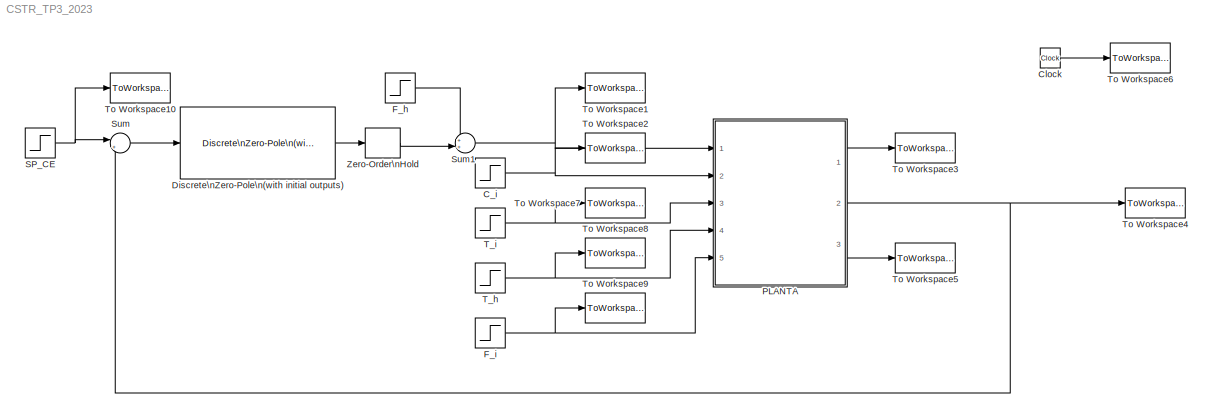
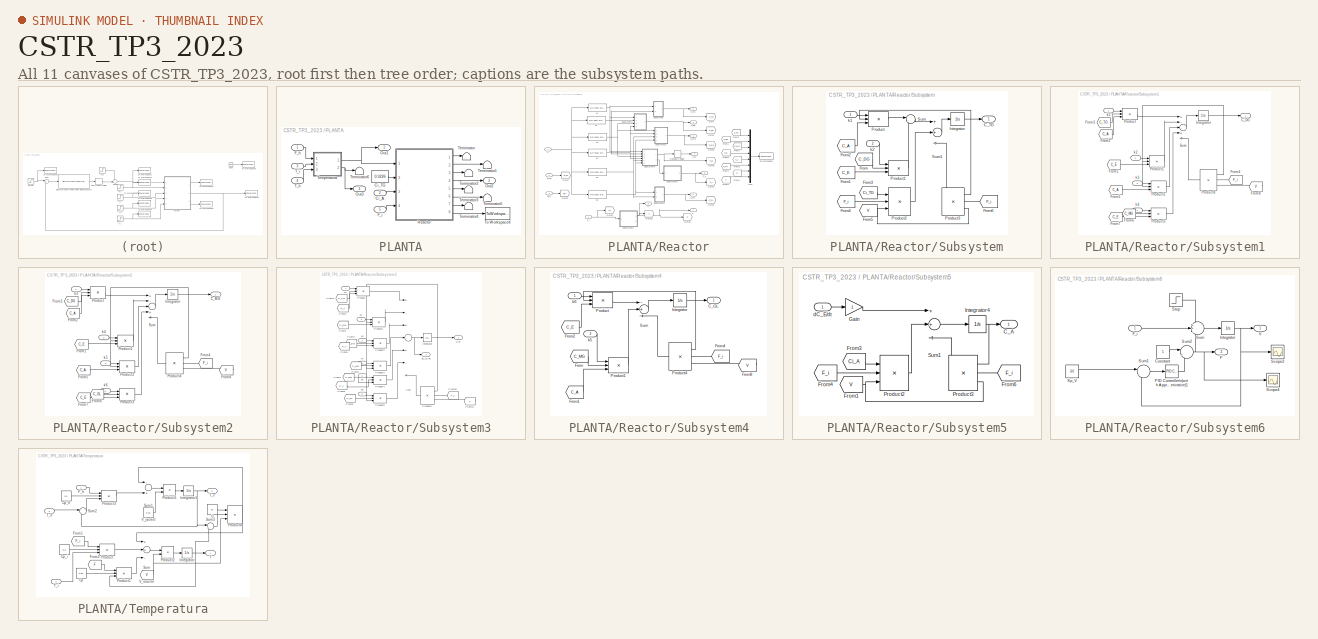
[diagram: thumbnail index - all 11 canvases of the model, root first then tree order]
MODEL CSTR_TP3_2023
KIND model
BLOCK [Step] C_i
  After = 1.1367
  Before = 1.1367
  SID = 1
  SampleTime = 1
  Time = 50
BLOCK [Clock] Clock
  SID = 2
BLOCK [Reference] Discrete\nZero-Pole\n(with initial outputs)  REF=simulink_extras/Additional\nDiscrete/Discrete\nZero-Pole\n(with initial outputs)
  K = [k]
  P = [pole1; pole2]
  Ports = [1, 1]
  SID = 3
  SourceBlock = simulink_extras/Additional\nDiscrete/Discrete\nZero-Pole\n(with initial outputs)
  SourceType = Discrete Zero-Pole with Initial Outputs
  TS = Ts
  U0 = 0
  Y0 = 0
  Z = [zero1; zero2]
BLOCK [Step] F_h
  After = 0.8946
  Before = 0.8946
  SID = 4
  SampleTime = 1
  Time = 50
BLOCK [Step] F_i
  Before = 1
  SID = 5
  SampleTime = 1
  Time = 50
BLOCK [SubSystem] PLANTA
  Ports = [5, 3]
  RequestExecContextInheritance = off
  SID = 6
BLOCK [Inport] PLANTA/Ci_A
  IconDisplay = Port number
  Port = 2
  SID = 8
BLOCK [Constant] PLANTA/Ci_TG
  SID = 12
  Value = 0.3226
BLOCK [Inport] PLANTA/F_h
  IconDisplay = Port number
  SID = 7
BLOCK [Inport] PLANTA/F_i
  IconDisplay = Port number
  Port = 5
  SID = 11
BLOCK [Outport] PLANTA/Out1
  IconDisplay = Port number
  SID = 217
BLOCK [Outport] PLANTA/Out2
  IconDisplay = Port number
  Port = 2
  SID = 218
BLOCK [Outport] PLANTA/Out3
  IconDisplay = Port number
  Port = 3
  SID = 219
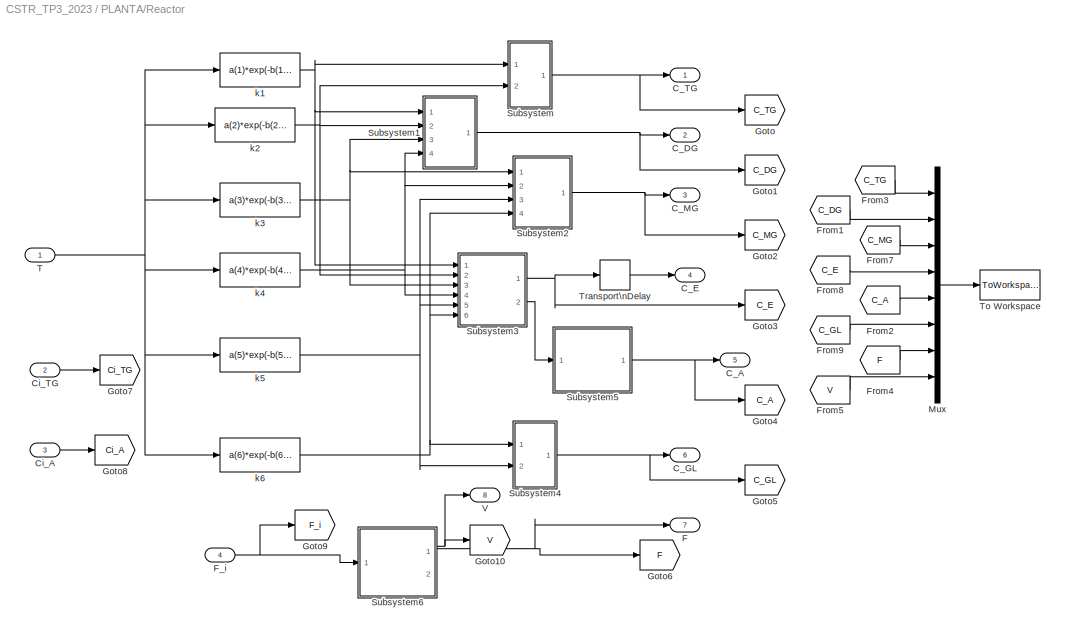
BLOCK [SubSystem] PLANTA/Reactor
  Ports = [4, 8]
  RequestExecContextInheritance = off
  SID = 13
BLOCK [Outport] PLANTA/Reactor/C_A
  IconDisplay = Port number
  Port = 5
  SID = 179
BLOCK [Outport] PLANTA/Reactor/C_DG
  IconDisplay = Port number
  Port = 2
  SID = 176
BLOCK [Outport] PLANTA/Reactor/C_E
  IconDisplay = Port number
  Port = 4
  SID = 178
BLOCK [Outport] PLANTA/Reactor/C_GL
  IconDisplay = Port number
  Port = 6
  SID = 180
BLOCK [Outport] PLANTA/Reactor/C_MG
  IconDisplay = Port number
  Port = 3
  SID = 177
BLOCK [Outport] PLANTA/Reactor/C_TG
  IconDisplay = Port number
  SID = 175
BLOCK [Inport] PLANTA/Reactor/Ci_A
  IconDisplay = Port number
  Port = 3
  SID = 16
BLOCK [Inport] PLANTA/Reactor/Ci_TG
  IconDisplay = Port number
  Port = 2
  SID = 15
BLOCK [Outport] PLANTA/Reactor/F
  IconDisplay = Port number
  Port = 7
  SID = 181
BLOCK [Inport] PLANTA/Reactor/F_i
  IconDisplay = Port number
  Port = 4
  SID = 17
BLOCK [From] PLANTA/Reactor/From1
  CloseFcn = tagdialog Close
  GotoTag = C_DG
  SID = 18
  TagVisibility = global
BLOCK [From] PLANTA/Reactor/From2
  CloseFcn = tagdialog Close
  GotoTag = C_A
  SID = 19
  TagVisibility = global
BLOCK [From] PLANTA/Reactor/From3
  CloseFcn = tagdialog Close
  GotoTag = C_TG
  SID = 20
  TagVisibility = global
BLOCK [From] PLANTA/Reactor/From4
  CloseFcn = tagdialog Close
  GotoTag = F
  SID = 21
  TagVisibility = global
BLOCK [From] PLANTA/Reactor/From5
  CloseFcn = tagdialog Close
  GotoTag = V
  SID = 22
  TagVisibility = global
BLOCK [From] PLANTA/Reactor/From7
  CloseFcn = tagdialog Close
  GotoTag = C_MG
  SID = 23
  TagVisibility = global
BLOCK [From] PLANTA/Reactor/From8
  CloseFcn = tagdialog Close
  GotoTag = C_E
  SID = 24
  TagVisibility = global
BLOCK [From] PLANTA/Reactor/From9
  CloseFcn = tagdialog Close
  GotoTag = C_GL
  SID = 25
  TagVisibility = global
BLOCK [Goto] PLANTA/Reactor/Goto
  GotoTag = C_TG
  SID = 26
  TagVisibility = global
BLOCK [Goto] PLANTA/Reactor/Goto1
  GotoTag = C_DG
  SID = 27
  TagVisibility = global
BLOCK [Goto] PLANTA/Reactor/Goto10
  GotoTag = V
  SID = 28
  TagVisibility = global
BLOCK [Goto] PLANTA/Reactor/Goto2
  GotoTag = C_MG
  SID = 29
  TagVisibility = global
BLOCK [Goto] PLANTA/Reactor/Goto3
  GotoTag = C_E
  SID = 30
  TagVisibility = global
BLOCK [Goto] PLANTA/Reactor/Goto4
  GotoTag = C_A
  SID = 31
  TagVisibility = global
BLOCK [Goto] PLANTA/Reactor/Goto5
  GotoTag = C_GL
  SID = 32
  TagVisibility = global
BLOCK [Goto] PLANTA/Reactor/Goto6
  GotoTag = F
  SID = 33
  TagVisibility = global
BLOCK [Goto] PLANTA/Reactor/Goto7
  GotoTag = Ci_TG
  SID = 34
  TagVisibility = global
BLOCK [Goto] PLANTA/Reactor/Goto8
  GotoTag = Ci_A
  SID = 35
  TagVisibility = global
BLOCK [Goto] PLANTA/Reactor/Goto9
  GotoTag = F_i
  SID = 36
  TagVisibility = global
BLOCK [Mux] PLANTA/Reactor/Mux
  DisplayOption = bar
  Inputs = 8
  Ports = [8, 1]
  SID = 37
BLOCK [SubSystem] PLANTA/Reactor/Subsystem
  Ports = [2, 1]
  RequestExecContextInheritance = off
  SID = 38
BLOCK [Outport] PLANTA/Reactor/Subsystem/C_TG
  IconDisplay = Port number
  SID = 55
BLOCK [From] PLANTA/Reactor/Subsystem/From
  CloseFcn = tagdialog Close
  GotoTag = C_DG
  SID = 41
  TagVisibility = global
BLOCK [From] PLANTA/Reactor/Subsystem/From1
  CloseFcn = tagdialog Close
  GotoTag = C_E
  SID = 42
  TagVisibility = global
BLOCK [From] PLANTA/Reactor/Subsystem/From2
  CloseFcn = tagdialog Close
  GotoTag = C_A
  SID = 43
  TagVisibility = global
BLOCK [From] PLANTA/Reactor/Subsystem/From3
  CloseFcn = tagdialog Close
  GotoTag = Ci_TG
  SID = 44
  TagVisibility = global
BLOCK [From] PLANTA/Reactor/Subsystem/From4
  CloseFcn = tagdialog Close
  GotoTag = F_i
  SID = 45
  TagVisibility = global
BLOCK [From] PLANTA/Reactor/Subsystem/From5
  CloseFcn = tagdialog Close
  GotoTag = V
  SID = 46
  TagVisibility = global
BLOCK [From] PLANTA/Reactor/Subsystem/From6
  CloseFcn = tagdialog Close
  GotoTag = F_i
  SID = 47
  TagVisibility = global
BLOCK [Integrator] PLANTA/Reactor/Subsystem/Integrator
  InitialCondition = C0(1)
  Ports = [1, 1]
  SID = 48
BLOCK [Product] PLANTA/Reactor/Subsystem/Product
  Inputs = 3
  Ports = [3, 1]
  SID = 49
BLOCK [Product] PLANTA/Reactor/Subsystem/Product1
  Inputs = 3
  Ports = [3, 1]
  SID = 50
BLOCK [Product] PLANTA/Reactor/Subsystem/Product2
  Inputs = **/
  Ports = [3, 1]
  SID = 51
BLOCK [Product] PLANTA/Reactor/Subsystem/Product3
  Inputs = **/
  Ports = [3, 1]
  SID = 52
BLOCK [Sum] PLANTA/Reactor/Subsystem/Sum
  IconShape = round
  Inputs = |-+
  Ports = [2, 1]
  SID = 53
BLOCK [Sum] PLANTA/Reactor/Subsystem/Sum1
  Inputs = ++-
  Ports = [3, 1]
  SID = 54
BLOCK [Inport] PLANTA/Reactor/Subsystem/k1
  IconDisplay = Port number
  SID = 39
BLOCK [Inport] PLANTA/Reactor/Subsystem/k2
  IconDisplay = Port number
  Port = 2
  SID = 40
BLOCK [SubSystem] PLANTA/Reactor/Subsystem1
  Ports = [4, 1]
  RequestExecContextInheritance = off
  SID = 56
BLOCK [Outport] PLANTA/Reactor/Subsystem1/C_DG
  IconDisplay = Port number
  SID = 76
BLOCK [From] PLANTA/Reactor/Subsystem1/From1
  CloseFcn = tagdialog Close
  GotoTag = C_E
  SID = 61
  TagVisibility = global
BLOCK [From] PLANTA/Reactor/Subsystem1/From2
  CloseFcn = tagdialog Close
  GotoTag = C_A
  SID = 62
  TagVisibility = global
BLOCK [From] PLANTA/Reactor/Subsystem1/From3
  CloseFcn = tagdialog Close
  GotoTag = C_TG
  SID = 63
  TagVisibility = global
BLOCK [From] PLANTA/Reactor/Subsystem1/From4
  CloseFcn = tagdialog Close
  GotoTag = F_i
  SID = 64
  TagVisibility = global
BLOCK [From] PLANTA/Reactor/Subsystem1/From5
  CloseFcn = tagdialog Close
  GotoTag = C_A
  SID = 65
  TagVisibility = global
BLOCK [From] PLANTA/Reactor/Subsystem1/From6
  CloseFcn = tagdialog Close
  GotoTag = C_MG
  SID = 66
  TagVisibility = global
BLOCK [From] PLANTA/Reactor/Subsystem1/From7
  CloseFcn = tagdialog Close
  GotoTag = C_E
  SID = 67
  TagVisibility = global
BLOCK [From] PLANTA/Reactor/Subsystem1/From8
  CloseFcn = tagdialog Close
  GotoTag = V
  SID = 68
  TagVisibility = global
BLOCK [Integrator] PLANTA/Reactor/Subsystem1/Integrator
  InitialCondition = C0(2)
  Ports = [1, 1]
  SID = 69
BLOCK [Product] PLANTA/Reactor/Subsystem1/Product
  Inputs = 3
  Ports = [3, 1]
  SID = 70
BLOCK [Product] PLANTA/Reactor/Subsystem1/Product1
  Inputs = 3
  Ports = [3, 1]
  SID = 71
BLOCK [Product] PLANTA/Reactor/Subsystem1/Product2
  Inputs = 3
  Ports = [3, 1]
  SID = 72
BLOCK [Product] PLANTA/Reactor/Subsystem1/Product3
  Inputs = 3
  Ports = [3, 1]
  SID = 73
BLOCK [Product] PLANTA/Reactor/Subsystem1/Product4
  Inputs = **/
  Ports = [3, 1]
  SID = 74
BLOCK [Sum] PLANTA/Reactor/Subsystem1/Sum
  Inputs = +--+-
  Ports = [5, 1]
  SID = 75
BLOCK [Inport] PLANTA/Reactor/Subsystem1/k1
  IconDisplay = Port number
  SID = 57
BLOCK [Inport] PLANTA/Reactor/Subsystem1/k2
  IconDisplay = Port number
  Port = 2
  SID = 58
BLOCK [Inport] PLANTA/Reactor/Subsystem1/k3
  IconDisplay = Port number
  Port = 3
  SID = 59
BLOCK [Inport] PLANTA/Reactor/Subsystem1/k4
  IconDisplay = Port number
  Port = 4
  SID = 60
BLOCK [SubSystem] PLANTA/Reactor/Subsystem2
  Ports = [4, 1]
  RequestExecContextInheritance = off
  SID = 77
BLOCK [Outport] PLANTA/Reactor/Subsystem2/C_MG
  IconDisplay = Port number
  SID = 97
BLOCK [From] PLANTA/Reactor/Subsystem2/From1
  CloseFcn = tagdialog Close
  GotoTag = C_E
  SID = 82
  TagVisibility = global
BLOCK [From] PLANTA/Reactor/Subsystem2/From2
  CloseFcn = tagdialog Close
  GotoTag = C_A
  SID = 83
  TagVisibility = global
BLOCK [From] PLANTA/Reactor/Subsystem2/From3
  CloseFcn = tagdialog Close
  GotoTag = C_DG
  SID = 84
  TagVisibility = global
BLOCK [From] PLANTA/Reactor/Subsystem2/From4
  CloseFcn = tagdialog Close
  GotoTag = F_i
  SID = 85
  TagVisibility = global
BLOCK [From] PLANTA/Reactor/Subsystem2/From5
  CloseFcn = tagdialog Close
  GotoTag = C_A
  SID = 86
  TagVisibility = global
BLOCK [From] PLANTA/Reactor/Subsystem2/From6
  CloseFcn = tagdialog Close
  GotoTag = C_GL
  SID = 87
  TagVisibility = global
BLOCK [From] PLANTA/Reactor/Subsystem2/From7
  CloseFcn = tagdialog Close
  GotoTag = C_E
  SID = 88
  TagVisibility = global
BLOCK [From] PLANTA/Reactor/Subsystem2/From8
  CloseFcn = tagdialog Close
  GotoTag = V
  SID = 89
  TagVisibility = global
BLOCK [Integrator] PLANTA/Reactor/Subsystem2/Integrator
  InitialCondition = C0(3)
  Ports = [1, 1]
  SID = 90
BLOCK [Product] PLANTA/Reactor/Subsystem2/Product
  Inputs = 3
  Ports = [3, 1]
  SID = 91
BLOCK [Product] PLANTA/Reactor/Subsystem2/Product1
  Inputs = 3
  Ports = [3, 1]
  SID = 92
BLOCK [Product] PLANTA/Reactor/Subsystem2/Product2
  Inputs = 3
  Ports = [3, 1]
  SID = 93
BLOCK [Product] PLANTA/Reactor/Subsystem2/Product3
  Inputs = 3
  Ports = [3, 1]
  SID = 94
BLOCK [Product] PLANTA/Reactor/Subsystem2/Product4
  Inputs = **/
  Ports = [3, 1]
  SID = 95
BLOCK [Sum] PLANTA/Reactor/Subsystem2/Sum
  Inputs = +--+-
  Ports = [5, 1]
  SID = 96
BLOCK [Inport] PLANTA/Reactor/Subsystem2/k3
  IconDisplay = Port number
  SID = 78
BLOCK [Inport] PLANTA/Reactor/Subsystem2/k4
  IconDisplay = Port number
  Port = 2
  SID = 79
BLOCK [Inport] PLANTA/Reactor/Subsystem2/k5
  IconDisplay = Port number
  Port = 3
  SID = 80
BLOCK [Inport] PLANTA/Reactor/Subsystem2/k6
  IconDisplay = Port number
  Port = 4
  SID = 81
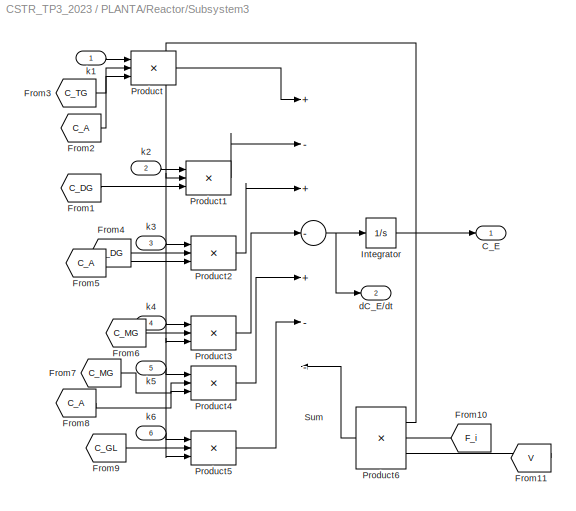
BLOCK [SubSystem] PLANTA/Reactor/Subsystem3
  Ports = [6, 2]
  RequestExecContextInheritance = off
  SID = 98
BLOCK [Outport] PLANTA/Reactor/Subsystem3/C_E
  IconDisplay = Port number
  SID = 125
BLOCK [From] PLANTA/Reactor/Subsystem3/From1
  CloseFcn = tagdialog Close
  GotoTag = C_DG
  SID = 105
  TagVisibility = global
BLOCK [From] PLANTA/Reactor/Subsystem3/From10
  CloseFcn = tagdialog Close
  GotoTag = F_i
  SID = 106
  TagVisibility = global
BLOCK [From] PLANTA/Reactor/Subsystem3/From11
  CloseFcn = tagdialog Close
  GotoTag = V
  SID = 107
  TagVisibility = global
BLOCK [From] PLANTA/Reactor/Subsystem3/From2
  CloseFcn = tagdialog Close
  GotoTag = C_A
  SID = 108
  TagVisibility = global
BLOCK [From] PLANTA/Reactor/Subsystem3/From3
  CloseFcn = tagdialog Close
  GotoTag = C_TG
  SID = 109
  TagVisibility = global
BLOCK [From] PLANTA/Reactor/Subsystem3/From4
  CloseFcn = tagdialog Close
  GotoTag = C_DG
  SID = 110
  TagVisibility = global
BLOCK [From] PLANTA/Reactor/Subsystem3/From5
  CloseFcn = tagdialog Close
  GotoTag = C_A
  SID = 111
  TagVisibility = global
BLOCK [From] PLANTA/Reactor/Subsystem3/From6
  CloseFcn = tagdialog Close
  GotoTag = C_MG
  SID = 112
  TagVisibility = global
BLOCK [From] PLANTA/Reactor/Subsystem3/From7
  CloseFcn = tagdialog Close
  GotoTag = C_MG
  SID = 113
  TagVisibility = global
BLOCK [From] PLANTA/Reactor/Subsystem3/From8
  CloseFcn = tagdialog Close
  GotoTag = C_A
  SID = 114
  TagVisibility = global
BLOCK [From] PLANTA/Reactor/Subsystem3/From9
  CloseFcn = tagdialog Close
  GotoTag = C_GL
  SID = 115
  TagVisibility = global
BLOCK [Integrator] PLANTA/Reactor/Subsystem3/Integrator
  InitialCondition = C0(4)
  Ports = [1, 1]
  SID = 116
BLOCK [Product] PLANTA/Reactor/Subsystem3/Product
  Inputs = 3
  Ports = [3, 1]
  SID = 117
BLOCK [Product] PLANTA/Reactor/Subsystem3/Product1
  Inputs = 3
  Ports = [3, 1]
  SID = 118
BLOCK [Product] PLANTA/Reactor/Subsystem3/Product2
  Inputs = 3
  Ports = [3, 1]
  SID = 119
BLOCK [Product] PLANTA/Reactor/Subsystem3/Product3
  Inputs = 3
  Ports = [3, 1]
  SID = 120
BLOCK [Product] PLANTA/Reactor/Subsystem3/Product4
  Inputs = 3
  Ports = [3, 1]
  SID = 121
BLOCK [Product] PLANTA/Reactor/Subsystem3/Product5
  Inputs = 3
  Ports = [3, 1]
  SID = 122
BLOCK [Product] PLANTA/Reactor/Subsystem3/Product6
  Inputs = **/
  Ports = [3, 1]
  SID = 123
BLOCK [Sum] PLANTA/Reactor/Subsystem3/Sum
  Inputs = +-+-+--
  Ports = [7, 1]
  SID = 124
BLOCK [Outport] PLANTA/Reactor/Subsystem3/dC_E//dt
  IconDisplay = Port number
  Port = 2
  SID = 126
BLOCK [Inport] PLANTA/Reactor/Subsystem3/k1
  IconDisplay = Port number
  SID = 99
BLOCK [Inport] PLANTA/Reactor/Subsystem3/k2
  IconDisplay = Port number
  Port = 2
  SID = 100
BLOCK [Inport] PLANTA/Reactor/Subsystem3/k3
  IconDisplay = Port number
  Port = 3
  SID = 101
BLOCK [Inport] PLANTA/Reactor/Subsystem3/k4
  IconDisplay = Port number
  Port = 4
  SID = 102
BLOCK [Inport] PLANTA/Reactor/Subsystem3/k5
  IconDisplay = Port number
  Port = 5
  SID = 103
BLOCK [Inport] PLANTA/Reactor/Subsystem3/k6
  IconDisplay = Port number
  Port = 6
  SID = 104
BLOCK [SubSystem] PLANTA/Reactor/Subsystem4
  Ports = [2, 1]
  RequestExecContextInheritance = off
  SID = 127
BLOCK [Outport] PLANTA/Reactor/Subsystem4/C_GL
  IconDisplay = Port number
  SID = 140
BLOCK [From] PLANTA/Reactor/Subsystem4/From
  CloseFcn = tagdialog Close
  GotoTag = C_MG
  SID = 130
  TagVisibility = global
BLOCK [From] PLANTA/Reactor/Subsystem4/From1
  CloseFcn = tagdialog Close
  GotoTag = C_A
  SID = 131
  TagVisibility = global
BLOCK [From] PLANTA/Reactor/Subsystem4/From2
  CloseFcn = tagdialog Close
  GotoTag = C_E
  SID = 132
  TagVisibility = global
BLOCK [From] PLANTA/Reactor/Subsystem4/From4
  CloseFcn = tagdialog Close
  GotoTag = F_i
  SID = 133
  TagVisibility = global
BLOCK [From] PLANTA/Reactor/Subsystem4/From8
  CloseFcn = tagdialog Close
  GotoTag = V
  SID = 134
  TagVisibility = global
BLOCK [Integrator] PLANTA/Reactor/Subsystem4/Integrator
  InitialCondition = C0(6)
  Ports = [1, 1]
  SID = 135
BLOCK [Product] PLANTA/Reactor/Subsystem4/Product
  Inputs = 3
  Ports = [3, 1]
  SID = 136
BLOCK [Product] PLANTA/Reactor/Subsystem4/Product1
  Inputs = 3
  Ports = [3, 1]
  SID = 137
BLOCK [Product] PLANTA/Reactor/Subsystem4/Product4
  Inputs = **/
  Ports = [3, 1]
  SID = 138
BLOCK [Sum] PLANTA/Reactor/Subsystem4/Sum
  Inputs = -+-
  Ports = [3, 1]
  SID = 139
BLOCK [Inport] PLANTA/Reactor/Subsystem4/k5
  IconDisplay = Port number
  Port = 2
  SID = 129
BLOCK [Inport] PLANTA/Reactor/Subsystem4/k6
  IconDisplay = Port number
  SID = 128
BLOCK [SubSystem] PLANTA/Reactor/Subsystem5
  Ports = [1, 1]
  RequestExecContextInheritance = off
  SID = 141
BLOCK [Outport] PLANTA/Reactor/Subsystem5/C_A
  IconDisplay = Port number
  SID = 152
BLOCK [From] PLANTA/Reactor/Subsystem5/From1
  CloseFcn = tagdialog Close
  GotoTag = V
  SID = 143
  TagVisibility = global
BLOCK [From] PLANTA/Reactor/Subsystem5/From3
  CloseFcn = tagdialog Close
  GotoTag = Ci_A
  SID = 144
  TagVisibility = global
BLOCK [From] PLANTA/Reactor/Subsystem5/From4
  CloseFcn = tagdialog Close
  GotoTag = F_i
  SID = 145
  TagVisibility = global
BLOCK [From] PLANTA/Reactor/Subsystem5/From6
  CloseFcn = tagdialog Close
  GotoTag = F_i
  SID = 146
  TagVisibility = global
BLOCK [Gain] PLANTA/Reactor/Subsystem5/Gain
  Gain = -1
  SID = 147
BLOCK [Integrator] PLANTA/Reactor/Subsystem5/Integrator4
  InitialCondition = C0(5)
  Ports = [1, 1]
  SID = 148
BLOCK [Product] PLANTA/Reactor/Subsystem5/Product2
  Inputs = **/
  Ports = [3, 1]
  SID = 149
BLOCK [Product] PLANTA/Reactor/Subsystem5/Product3
  Inputs = **/
  Ports = [3, 1]
  SID = 150
BLOCK [Sum] PLANTA/Reactor/Subsystem5/Sum1
  Inputs = ++-
  Ports = [3, 1]
  SID = 151
BLOCK [Inport] PLANTA/Reactor/Subsystem5/dC_E//dt
  IconDisplay = Port number
  SID = 142
BLOCK [SubSystem] PLANTA/Reactor/Subsystem6
  Ports = [1, 2]
  RequestExecContextInheritance = off
  SID = 153
BLOCK [Constant] PLANTA/Reactor/Subsystem6/Constant
  SID = 155
BLOCK [Outport] PLANTA/Reactor/Subsystem6/F
  IconDisplay = Port number
  Port = 2
  SID = 166
BLOCK [Inport] PLANTA/Reactor/Subsystem6/F_i
  IconDisplay = Port number
  SID = 154
BLOCK [Integrator] PLANTA/Reactor/Subsystem6/Integrator
  InitialCondition = 60
  Ports = [1, 1]
  SID = 156
BLOCK [Reference] PLANTA/Reactor/Subsystem6/PID Controller\n(with Approximate\nDerivative)1  REF=simulink_need_slupdate/PID Controller\n(with Approximate\nDerivative)
  D = 0
  I = 1.0215
  N = 100
  P = 2.043
  Ports = [1, 1]
  SID = 157
  SourceBlock = simulink_need_slupdate/PID Controller\n(with Approximate\nDerivative)
  SourceType = PID(2) Controller
BLOCK [Scope] PLANTA/Reactor/Subsystem6/Scope3
  DataFormat = StructureWithTime
  Floating = off
  NumInputPorts = 1
  Ports = [1]
  SID = 158
  SaveName = ScopeData5
  ShowLegends = off
  YMax = 10
  YMin = -10
BLOCK [Scope] PLANTA/Reactor/Subsystem6/Scope4
  DataFormat = StructureWithTime
  Floating = off
  NumInputPorts = 1
  Ports = [1]
  SID = 159
  SaveName = ScopeData6
  ShowLegends = off
  YMax = 10
  YMin = -10
BLOCK [Constant] PLANTA/Reactor/Subsystem6/Sp_V
  SID = 160
  Value = 60
BLOCK [Step] PLANTA/Reactor/Subsystem6/Step
  After = 0
  SID = 161
  SampleTime = 0
  Time = 50
BLOCK [Sum] PLANTA/Reactor/Subsystem6/Sum
  IconShape = round
  Inputs = ++-
  Ports = [3, 1]
  SID = 162
BLOCK [Sum] PLANTA/Reactor/Subsystem6/Sum1
  IconShape = round
  Inputs = |-+
  Ports = [2, 1]
  SID = 163
BLOCK [Sum] PLANTA/Reactor/Subsystem6/Sum2
  IconShape = round
  Inputs = |++
  Ports = [2, 1]
  SID = 164
BLOCK [Outport] PLANTA/Reactor/Subsystem6/V
  IconDisplay = Port number
  SID = 165
BLOCK [Inport] PLANTA/Reactor/T
  IconDisplay = Port number
  SID = 14
BLOCK [ToWorkspace] PLANTA/Reactor/To Workspace
  MaxDataPoints = inf
  Ports = [1]
  SID = 167
  SampleTime = -1
  VariableName = C
BLOCK [TransportDelay] PLANTA/Reactor/Transport\nDelay
  DelayTime = 10
  InitialOutput = C0(4)
  Ports = [1, 1]
  SID = 168
BLOCK [Outport] PLANTA/Reactor/V
  IconDisplay = Port number
  Port = 8
  SID = 182
BLOCK [Fcn] PLANTA/Reactor/k1
  Expr = a(1)*exp(-b(1)/u)
  SID = 169
BLOCK [Fcn] PLANTA/Reactor/k2
  Expr = a(2)*exp(-b(2)/u)
  SID = 170
BLOCK [Fcn] PLANTA/Reactor/k3
  Expr = a(3)*exp(-b(3)/u)
  SID = 171
BLOCK [Fcn] PLANTA/Reactor/k4
  Expr = a(4)*exp(-b(4)/u)
  SID = 172
BLOCK [Fcn] PLANTA/Reactor/k5
  Expr = a(5)*exp(-b(5)/u)
  SID = 173
BLOCK [Fcn] PLANTA/Reactor/k6
  Expr = a(6)*exp(-b(6)/u)
  SID = 174
BLOCK [Inport] PLANTA/T_h
  IconDisplay = Port number
  Port = 4
  SID = 10
BLOCK [Inport] PLANTA/T_i
  IconDisplay = Port number
  Port = 3
  SID = 9
BLOCK [SubSystem] PLANTA/Temperatura
  Ports = [3, 2]
  RequestExecContextInheritance = off
  SID = 183
BLOCK [Constant] PLANTA/Temperatura/Cp
  SID = 187
  Value = 0.55
BLOCK [Constant] PLANTA/Temperatura/Cp_h
  SID = 188
  Value = 0.5
BLOCK [Constant] PLANTA/Temperatura/Cp_i
  SID = 189
  Value = 0.5
BLOCK [Inport] PLANTA/Temperatura/F_h
  IconDisplay = Port number
  SID = 184
BLOCK [From] PLANTA/Temperatura/From1
  CloseFcn = tagdialog Close
  GotoTag = F_i
  SID = 190
  TagVisibility = global
BLOCK [From] PLANTA/Temperatura/From2
  CloseFcn = tagdialog Close
  GotoTag = F
  SID = 191
  TagVisibility = global
BLOCK [Integrator] PLANTA/Temperatura/Integrator
  InitialCondition = 323
  Ports = [1, 1]
  SID = 192
BLOCK [Integrator] PLANTA/Temperatura/Integrator1
  InitialCondition = 408.95
  Ports = [1, 1]
  SID = 193
BLOCK [Product] PLANTA/Temperatura/Product
  Inputs = 3
  Ports = [3, 1]
  SID = 194
BLOCK [Product] PLANTA/Temperatura/Product1
  Inputs = 3
  Ports = [3, 1]
  SID = 195
BLOCK [Product] PLANTA/Temperatura/Product2
  Inputs = */
  Ports = [2, 1]
  SID = 196
BLOCK [Product] PLANTA/Temperatura/Product3
  Inputs = 3
  Ports = [3, 1]
  SID = 197
BLOCK [Product] PLANTA/Temperatura/Product4
  Inputs = **/
  Ports = [3, 1]
  SID = 198
BLOCK [Product] PLANTA/Temperatura/Product5
  Inputs = */
  Ports = [2, 1]
  SID = 199
BLOCK [Sum] PLANTA/Temperatura/Sum
  Inputs = ++-
  Ports = [3, 1]
  SID = 200
BLOCK [Sum] PLANTA/Temperatura/Sum1
  Inputs = -+
  Ports = [2, 1]
  SID = 201
BLOCK [Sum] PLANTA/Temperatura/Sum2
  IconShape = round
  Inputs = |+-
  Ports = [2, 1]
  SID = 202
BLOCK [Sum] PLANTA/Temperatura/Sum3
  IconShape = round
  Inputs = |+-
  Ports = [2, 1]
  SID = 203
BLOCK [Outport] PLANTA/Temperatura/T
  IconDisplay = Port number
  SID = 207
BLOCK [Outport] PLANTA/Temperatura/T_c
  IconDisplay = Port number
  Port = 2
  SID = 208
BLOCK [Inport] PLANTA/Temperatura/T_h
  IconDisplay = Port number
  Port = 3
  SID = 186
BLOCK [Inport] PLANTA/Temperatura/T_i
  IconDisplay = Port number
  Port = 2
  SID = 185
BLOCK [Constant] PLANTA/Temperatura/U
  SID = 204
  Value = 20
BLOCK [Constant] PLANTA/Temperatura/V_jacket
  SID = 205
  Value = 0.45
BLOCK [From] PLANTA/Temperatura/V_reactor
  CloseFcn = tagdialog Close
  GotoTag = V
  SID = 206
  TagVisibility = global
BLOCK [Terminator] PLANTA/Terminator
  SID = 209
BLOCK [Terminator] PLANTA/Terminator1
  SID = 210
BLOCK [Terminator] PLANTA/Terminator2
  SID = 211
BLOCK [Terminator] PLANTA/Terminator3
  SID = 212
BLOCK [Terminator] PLANTA/Terminator4
  SID = 213
BLOCK [Terminator] PLANTA/Terminator5
  SID = 214
BLOCK [Terminator] PLANTA/Terminator6
  SID = 215
BLOCK [ToWorkspace] PLANTA/To Workspace4
  MaxDataPoints = inf
  Ports = [1]
  SID = 216
  SampleTime = 1
  VariableName = V
BLOCK [Step] SP_CE
  After = 0.55386
  Before = 0.543
  SID = 220
  SampleTime = 1
  Time = 100
BLOCK [Sum] Sum
  IconShape = round
  InputSameDT = off
  Inputs = |+-
  OutDataTypeStr = Inherit: Inherit via internal rule
  Ports = [2, 1]
  SID = 223
  SaturateOnIntegerOverflow = off
BLOCK [Sum] Sum1
  IconShape = round
  InputSameDT = off
  Inputs = ++|
  OutDataTypeStr = Inherit: Inherit via internal rule
  Ports = [2, 1]
  SID = 224
  SaturateOnIntegerOverflow = off
BLOCK [Step] T_h
  After = 473
  Before = 473
  SID = 225
  SampleTime = 1
  Time = 50
BLOCK [Step] T_i
  After = 298*1.00
  Before = 298
  SID = 226
  SampleTime = 1
  Time = 100
BLOCK [ToWorkspace] To Workspace1
  MaxDataPoints = inf
  Ports = [1]
  SID = 227
  SampleTime = 1
  VariableName = F_h
BLOCK [ToWorkspace] To Workspace10
  MaxDataPoints = inf
  Ports = [1]
  SID = 228
  SampleTime = 1
  VariableName = SP_CE
BLOCK [ToWorkspace] To Workspace2
  MaxDataPoints = inf
  Ports = [1]
  SID = 229
  SampleTime = 1
  VariableName = C_i
BLOCK [ToWorkspace] To Workspace3
  MaxDataPoints = inf
  Ports = [1]
  SID = 230
  SampleTime = 1
  VariableName = T
BLOCK [ToWorkspace] To Workspace4
  MaxDataPoints = inf
  Ports = [1]
  SID = 231
  SampleTime = 1
  VariableName = C_E
BLOCK [ToWorkspace] To Workspace5
  MaxDataPoints = inf
  Ports = [1]
  SID = 232
  SampleTime = 1
  VariableName = T_j
BLOCK [ToWorkspace] To Workspace6
  MaxDataPoints = inf
  Ports = [1]
  SID = 233
  SampleTime = 1
  VariableName = t
BLOCK [ToWorkspace] To Workspace7
  MaxDataPoints = inf
  Ports = [1]
  SID = 234
  SampleTime = 1
  VariableName = T_i
BLOCK [ToWorkspace] To Workspace8
  MaxDataPoints = inf
  Ports = [1]
  SID = 235
  SampleTime = 1
  VariableName = T_h
BLOCK [ToWorkspace] To Workspace9
  MaxDataPoints = inf
  Ports = [1]
  SID = 236
  SampleTime = 1
  VariableName = F_i
BLOCK [ZeroOrderHold] Zero-Order\nHold
  SID = 237
  SampleTime = Ts
NET C_i:1 -> PLANTA:2, To Workspace2:1
LINE Clock:1 -> To Workspace6:1
LINE Discrete\nZero-Pole\n(with initial outputs):1 -> Zero-Order\nHold:1
LINE F_h:1 -> Sum1:1
NET F_i:1 -> PLANTA:5, To Workspace9:1
LINE PLANTA/Ci_A:1 -> PLANTA/Reactor:3
LINE PLANTA/Ci_TG:1 -> PLANTA/Reactor:2
LINE PLANTA/F_h:1 -> PLANTA/Temperatura:1
LINE PLANTA/F_i:1 -> PLANTA/Reactor:4
LINE PLANTA/Reactor/Ci_A:1 -> PLANTA/Reactor/Goto8:1
LINE PLANTA/Reactor/Ci_TG:1 -> PLANTA/Reactor/Goto7:1
NET PLANTA/Reactor/F_i:1 -> PLANTA/Reactor/Goto9:1, PLANTA/Reactor/Subsystem6:1
LINE PLANTA/Reactor/From1:1 -> PLANTA/Reactor/Mux:2
LINE PLANTA/Reactor/From2:1 -> PLANTA/Reactor/Mux:5
LINE PLANTA/Reactor/From3:1 -> PLANTA/Reactor/Mux:1
LINE PLANTA/Reactor/From4:1 -> PLANTA/Reactor/Mux:7
LINE PLANTA/Reactor/From5:1 -> PLANTA/Reactor/Mux:8
LINE PLANTA/Reactor/From7:1 -> PLANTA/Reactor/Mux:3
LINE PLANTA/Reactor/From8:1 -> PLANTA/Reactor/Mux:4
LINE PLANTA/Reactor/From9:1 -> PLANTA/Reactor/Mux:6
LINE PLANTA/Reactor/Mux:1 -> PLANTA/Reactor/To Workspace:1
LINE PLANTA/Reactor/Subsystem/From1:1 -> PLANTA/Reactor/Subsystem/Product1:3
LINE PLANTA/Reactor/Subsystem/From2:1 -> PLANTA/Reactor/Subsystem/Product:3
LINE PLANTA/Reactor/Subsystem/From3:1 -> PLANTA/Reactor/Subsystem/Product2:1
LINE PLANTA/Reactor/Subsystem/From4:1 -> PLANTA/Reactor/Subsystem/Product2:2
NET PLANTA/Reactor/Subsystem/From5:1 -> PLANTA/Reactor/Subsystem/Product2:3, PLANTA/Reactor/Subsystem/Product3:3
LINE PLANTA/Reactor/Subsystem/From6:1 -> PLANTA/Reactor/Subsystem/Product3:2
LINE PLANTA/Reactor/Subsystem/From:1 -> PLANTA/Reactor/Subsystem/Product1:2
NET PLANTA/Reactor/Subsystem/Integrator:1 -> PLANTA/Reactor/Subsystem/C_TG:1, PLANTA/Reactor/Subsystem/Product3:1, PLANTA/Reactor/Subsystem/Product:2
LINE PLANTA/Reactor/Subsystem/Product1:1 -> PLANTA/Reactor/Subsystem/Sum:2
LINE PLANTA/Reactor/Subsystem/Product2:1 -> PLANTA/Reactor/Subsystem/Sum1:2
LINE PLANTA/Reactor/Subsystem/Product3:1 -> PLANTA/Reactor/Subsystem/Sum1:3
LINE PLANTA/Reactor/Subsystem/Product:1 -> PLANTA/Reactor/Subsystem/Sum:1
LINE PLANTA/Reactor/Subsystem/Sum1:1 -> PLANTA/Reactor/Subsystem/Integrator:1
LINE PLANTA/Reactor/Subsystem/Sum:1 -> PLANTA/Reactor/Subsystem/Sum1:1
LINE PLANTA/Reactor/Subsystem/k1:1 -> PLANTA/Reactor/Subsystem/Product:1
LINE PLANTA/Reactor/Subsystem/k2:1 -> PLANTA/Reactor/Subsystem/Product1:1
LINE PLANTA/Reactor/Subsystem1/From1:1 -> PLANTA/Reactor/Subsystem1/Product1:3
LINE PLANTA/Reactor/Subsystem1/From2:1 -> PLANTA/Reactor/Subsystem1/Product:3
LINE PLANTA/Reactor/Subsystem1/From3:1 -> PLANTA/Reactor/Subsystem1/Product:2
LINE PLANTA/Reactor/Subsystem1/From4:1 -> PLANTA/Reactor/Subsystem1/Product4:2
LINE PLANTA/Reactor/Subsystem1/From5:1 -> PLANTA/Reactor/Subsystem1/Product2:3
LINE PLANTA/Reactor/Subsystem1/From6:1 -> PLANTA/Reactor/Subsystem1/Product3:2
LINE PLANTA/Reactor/Subsystem1/From7:1 -> PLANTA/Reactor/Subsystem1/Product3:3
LINE PLANTA/Reactor/Subsystem1/From8:1 -> PLANTA/Reactor/Subsystem1/Product4:3
NET PLANTA/Reactor/Subsystem1/Integrator:1 -> PLANTA/Reactor/Subsystem1/C_DG:1, PLANTA/Reactor/Subsystem1/Product1:2, PLANTA/Reactor/Subsystem1/Product2:2, PLANTA/Reactor/Subsystem1/Product4:1
LINE PLANTA/Reactor/Subsystem1/Product1:1 -> PLANTA/Reactor/Subsystem1/Sum:2
LINE PLANTA/Reactor/Subsystem1/Product2:1 -> PLANTA/Reactor/Subsystem1/Sum:3
LINE PLANTA/Reactor/Subsystem1/Product3:1 -> PLANTA/Reactor/Subsystem1/Sum:4
LINE PLANTA/Reactor/Subsystem1/Product4:1 -> PLANTA/Reactor/Subsystem1/Sum:5
LINE PLANTA/Reactor/Subsystem1/Product:1 -> PLANTA/Reactor/Subsystem1/Sum:1
LINE PLANTA/Reactor/Subsystem1/Sum:1 -> PLANTA/Reactor/Subsystem1/Integrator:1
LINE PLANTA/Reactor/Subsystem1/k1:1 -> PLANTA/Reactor/Subsystem1/Product:1
LINE PLANTA/Reactor/Subsystem1/k2:1 -> PLANTA/Reactor/Subsystem1/Product1:1
LINE PLANTA/Reactor/Subsystem1/k3:1 -> PLANTA/Reactor/Subsystem1/Product2:1
LINE PLANTA/Reactor/Subsystem1/k4:1 -> PLANTA/Reactor/Subsystem1/Product3:1
NET PLANTA/Reactor/Subsystem1:1 -> PLANTA/Reactor/C_DG:1, PLANTA/Reactor/Goto1:1
LINE PLANTA/Reactor/Subsystem2/From1:1 -> PLANTA/Reactor/Subsystem2/Product1:3
LINE PLANTA/Reactor/Subsystem2/From2:1 -> PLANTA/Reactor/Subsystem2/Product:3
LINE PLANTA/Reactor/Subsystem2/From3:1 -> PLANTA/Reactor/Subsystem2/Product:2
LINE PLANTA/Reactor/Subsystem2/From4:1 -> PLANTA/Reactor/Subsystem2/Product4:2
LINE PLANTA/Reactor/Subsystem2/From5:1 -> PLANTA/Reactor/Subsystem2/Product2:3
LINE PLANTA/Reactor/Subsystem2/From6:1 -> PLANTA/Reactor/Subsystem2/Product3:2
LINE PLANTA/Reactor/Subsystem2/From7:1 -> PLANTA/Reactor/Subsystem2/Product3:3
LINE PLANTA/Reactor/Subsystem2/From8:1 -> PLANTA/Reactor/Subsystem2/Product4:3
NET PLANTA/Reactor/Subsystem2/Integrator:1 -> PLANTA/Reactor/Subsystem2/C_MG:1, PLANTA/Reactor/Subsystem2/Product1:2, PLANTA/Reactor/Subsystem2/Product2:2, PLANTA/Reactor/Subsystem2/Product4:1
LINE PLANTA/Reactor/Subsystem2/Product1:1 -> PLANTA/Reactor/Subsystem2/Sum:2
LINE PLANTA/Reactor/Subsystem2/Product2:1 -> PLANTA/Reactor/Subsystem2/Sum:3
LINE PLANTA/Reactor/Subsystem2/Product3:1 -> PLANTA/Reactor/Subsystem2/Sum:4
LINE PLANTA/Reactor/Subsystem2/Product4:1 -> PLANTA/Reactor/Subsystem2/Sum:5
LINE PLANTA/Reactor/Subsystem2/Product:1 -> PLANTA/Reactor/Subsystem2/Sum:1
LINE PLANTA/Reactor/Subsystem2/Sum:1 -> PLANTA/Reactor/Subsystem2/Integrator:1
LINE PLANTA/Reactor/Subsystem2/k3:1 -> PLANTA/Reactor/Subsystem2/Product:1
LINE PLANTA/Reactor/Subsystem2/k4:1 -> PLANTA/Reactor/Subsystem2/Product1:1
LINE PLANTA/Reactor/Subsystem2/k5:1 -> PLANTA/Reactor/Subsystem2/Product2:1
LINE PLANTA/Reactor/Subsystem2/k6:1 -> PLANTA/Reactor/Subsystem2/Product3:1
NET PLANTA/Reactor/Subsystem2:1 -> PLANTA/Reactor/C_MG:1, PLANTA/Reactor/Goto2:1
LINE PLANTA/Reactor/Subsystem3/From10:1 -> PLANTA/Reactor/Subsystem3/Product6:2
LINE PLANTA/Reactor/Subsystem3/From11:1 -> PLANTA/Reactor/Subsystem3/Product6:3
LINE PLANTA/Reactor/Subsystem3/From1:1 -> PLANTA/Reactor/Subsystem3/Product1:3
LINE PLANTA/Reactor/Subsystem3/From2:1 -> PLANTA/Reactor/Subsystem3/Product:3
LINE PLANTA/Reactor/Subsystem3/From3:1 -> PLANTA/Reactor/Subsystem3/Product:2
LINE PLANTA/Reactor/Subsystem3/From4:1 -> PLANTA/Reactor/Subsystem3/Product2:2
LINE PLANTA/Reactor/Subsystem3/From5:1 -> PLANTA/Reactor/Subsystem3/Product2:3
LINE PLANTA/Reactor/Subsystem3/From6:1 -> PLANTA/Reactor/Subsystem3/Product3:2
LINE PLANTA/Reactor/Subsystem3/From7:1 -> PLANTA/Reactor/Subsystem3/Product4:2
LINE PLANTA/Reactor/Subsystem3/From8:1 -> PLANTA/Reactor/Subsystem3/Product4:3
LINE PLANTA/Reactor/Subsystem3/From9:1 -> PLANTA/Reactor/Subsystem3/Product5:2
NET PLANTA/Reactor/Subsystem3/Integrator:1 -> PLANTA/Reactor/Subsystem3/C_E:1, PLANTA/Reactor/Subsystem3/Product1:2, PLANTA/Reactor/Subsystem3/Product3:3, PLANTA/Reactor/Subsystem3/Product5:3, PLANTA/Reactor/Subsystem3/Product6:1
LINE PLANTA/Reactor/Subsystem3/Product1:1 -> PLANTA/Reactor/Subsystem3/Sum:2
LINE PLANTA/Reactor/Subsystem3/Product2:1 -> PLANTA/Reactor/Subsystem3/Sum:3
LINE PLANTA/Reactor/Subsystem3/Product3:1 -> PLANTA/Reactor/Subsystem3/Sum:4
LINE PLANTA/Reactor/Subsystem3/Product4:1 -> PLANTA/Reactor/Subsystem3/Sum:5
LINE PLANTA/Reactor/Subsystem3/Product5:1 -> PLANTA/Reactor/Subsystem3/Sum:6
LINE PLANTA/Reactor/Subsystem3/Product6:1 -> PLANTA/Reactor/Subsystem3/Sum:7
LINE PLANTA/Reactor/Subsystem3/Product:1 -> PLANTA/Reactor/Subsystem3/Sum:1
NET PLANTA/Reactor/Subsystem3/Sum:1 -> PLANTA/Reactor/Subsystem3/Integrator:1, PLANTA/Reactor/Subsystem3/dC_E//dt:1
LINE PLANTA/Reactor/Subsystem3/k1:1 -> PLANTA/Reactor/Subsystem3/Product:1
LINE PLANTA/Reactor/Subsystem3/k2:1 -> PLANTA/Reactor/Subsystem3/Product1:1
LINE PLANTA/Reactor/Subsystem3/k3:1 -> PLANTA/Reactor/Subsystem3/Product2:1
LINE PLANTA/Reactor/Subsystem3/k4:1 -> PLANTA/Reactor/Subsystem3/Product3:1
LINE PLANTA/Reactor/Subsystem3/k5:1 -> PLANTA/Reactor/Subsystem3/Product4:1
LINE PLANTA/Reactor/Subsystem3/k6:1 -> PLANTA/Reactor/Subsystem3/Product5:1
NET PLANTA/Reactor/Subsystem3:1 -> PLANTA/Reactor/Goto3:1, PLANTA/Reactor/Transport\nDelay:1
LINE PLANTA/Reactor/Subsystem3:2 -> PLANTA/Reactor/Subsystem5:1
LINE PLANTA/Reactor/Subsystem4/From1:1 -> PLANTA/Reactor/Subsystem4/Product1:3
LINE PLANTA/Reactor/Subsystem4/From2:1 -> PLANTA/Reactor/Subsystem4/Product:3
LINE PLANTA/Reactor/Subsystem4/From4:1 -> PLANTA/Reactor/Subsystem4/Product4:2
LINE PLANTA/Reactor/Subsystem4/From8:1 -> PLANTA/Reactor/Subsystem4/Product4:3
LINE PLANTA/Reactor/Subsystem4/From:1 -> PLANTA/Reactor/Subsystem4/Product1:2
NET PLANTA/Reactor/Subsystem4/Integrator:1 -> PLANTA/Reactor/Subsystem4/C_GL:1, PLANTA/Reactor/Subsystem4/Product4:1, PLANTA/Reactor/Subsystem4/Product:2
LINE PLANTA/Reactor/Subsystem4/Product1:1 -> PLANTA/Reactor/Subsystem4/Sum:2
LINE PLANTA/Reactor/Subsystem4/Product4:1 -> PLANTA/Reactor/Subsystem4/Sum:3
LINE PLANTA/Reactor/Subsystem4/Product:1 -> PLANTA/Reactor/Subsystem4/Sum:1
LINE PLANTA/Reactor/Subsystem4/Sum:1 -> PLANTA/Reactor/Subsystem4/Integrator:1
LINE PLANTA/Reactor/Subsystem4/k5:1 -> PLANTA/Reactor/Subsystem4/Product1:1
LINE PLANTA/Reactor/Subsystem4/k6:1 -> PLANTA/Reactor/Subsystem4/Product:1
NET PLANTA/Reactor/Subsystem4:1 -> PLANTA/Reactor/C_GL:1, PLANTA/Reactor/Goto5:1
NET PLANTA/Reactor/Subsystem5/From1:1 -> PLANTA/Reactor/Subsystem5/Product2:3, PLANTA/Reactor/Subsystem5/Product3:3
LINE PLANTA/Reactor/Subsystem5/From3:1 -> PLANTA/Reactor/Subsystem5/Product2:1
LINE PLANTA/Reactor/Subsystem5/From4:1 -> PLANTA/Reactor/Subsystem5/Product2:2
LINE PLANTA/Reactor/Subsystem5/From6:1 -> PLANTA/Reactor/Subsystem5/Product3:2
LINE PLANTA/Reactor/Subsystem5/Gain:1 -> PLANTA/Reactor/Subsystem5/Sum1:1
NET PLANTA/Reactor/Subsystem5/Integrator4:1 -> PLANTA/Reactor/Subsystem5/C_A:1, PLANTA/Reactor/Subsystem5/Product3:1
LINE PLANTA/Reactor/Subsystem5/Product2:1 -> PLANTA/Reactor/Subsystem5/Sum1:2
LINE PLANTA/Reactor/Subsystem5/Product3:1 -> PLANTA/Reactor/Subsystem5/Sum1:3
LINE PLANTA/Reactor/Subsystem5/Sum1:1 -> PLANTA/Reactor/Subsystem5/Integrator4:1
LINE PLANTA/Reactor/Subsystem5/dC_E//dt:1 -> PLANTA/Reactor/Subsystem5/Gain:1
NET PLANTA/Reactor/Subsystem5:1 -> PLANTA/Reactor/C_A:1, PLANTA/Reactor/Goto4:1
LINE PLANTA/Reactor/Subsystem6/Constant:1 -> PLANTA/Reactor/Subsystem6/Sum2:1
LINE PLANTA/Reactor/Subsystem6/F_i:1 -> PLANTA/Reactor/Subsystem6/Sum:2
NET PLANTA/Reactor/Subsystem6/Integrator:1 -> PLANTA/Reactor/Subsystem6/Scope3:1, PLANTA/Reactor/Subsystem6/Sum1:2, PLANTA/Reactor/Subsystem6/V:1
LINE PLANTA/Reactor/Subsystem6/PID Controller\n(with Approximate\nDerivative)1:1 -> PLANTA/Reactor/Subsystem6/Sum2:2
LINE PLANTA/Reactor/Subsystem6/Sp_V:1 -> PLANTA/Reactor/Subsystem6/Sum1:1
LINE PLANTA/Reactor/Subsystem6/Step:1 -> PLANTA/Reactor/Subsystem6/Sum:1
LINE PLANTA/Reactor/Subsystem6/Sum1:1 -> PLANTA/Reactor/Subsystem6/PID Controller\n(with Approximate\nDerivative)1:1
NET PLANTA/Reactor/Subsystem6/Sum2:1 -> PLANTA/Reactor/Subsystem6/F:1, PLANTA/Reactor/Subsystem6/Scope4:1, PLANTA/Reactor/Subsystem6/Sum:3
LINE PLANTA/Reactor/Subsystem6/Sum:1 -> PLANTA/Reactor/Subsystem6/Integrator:1
NET PLANTA/Reactor/Subsystem6:1 -> PLANTA/Reactor/Goto10:1, PLANTA/Reactor/V:1
NET PLANTA/Reactor/Subsystem6:2 -> PLANTA/Reactor/F:1, PLANTA/Reactor/Goto6:1
NET PLANTA/Reactor/Subsystem:1 -> PLANTA/Reactor/C_TG:1, PLANTA/Reactor/Goto:1
NET PLANTA/Reactor/T:1 -> PLANTA/Reactor/k1:1, PLANTA/Reactor/k2:1, PLANTA/Reactor/k3:1, PLANTA/Reactor/k4:1, PLANTA/Reactor/k5:1, PLANTA/Reactor/k6:1
LINE PLANTA/Reactor/Transport\nDelay:1 -> PLANTA/Reactor/C_E:1
NET PLANTA/Reactor/k1:1 -> PLANTA/Reactor/Subsystem1:1, PLANTA/Reactor/Subsystem3:1, PLANTA/Reactor/Subsystem:1
NET PLANTA/Reactor/k2:1 -> PLANTA/Reactor/Subsystem1:2, PLANTA/Reactor/Subsystem3:2, PLANTA/Reactor/Subsystem:2
NET PLANTA/Reactor/k3:1 -> PLANTA/Reactor/Subsystem1:3, PLANTA/Reactor/Subsystem2:1, PLANTA/Reactor/Subsystem3:3
NET PLANTA/Reactor/k4:1 -> PLANTA/Reactor/Subsystem1:4, PLANTA/Reactor/Subsystem2:2, PLANTA/Reactor/Subsystem3:4
NET PLANTA/Reactor/k5:1 -> PLANTA/Reactor/Subsystem2:3, PLANTA/Reactor/Subsystem3:5, PLANTA/Reactor/Subsystem4:2
NET PLANTA/Reactor/k6:1 -> PLANTA/Reactor/Subsystem2:4, PLANTA/Reactor/Subsystem3:6, PLANTA/Reactor/Subsystem4:1
LINE PLANTA/Reactor:1 -> PLANTA/Terminator:1
LINE PLANTA/Reactor:2 -> PLANTA/Terminator1:1
LINE PLANTA/Reactor:3 -> PLANTA/Terminator2:1
LINE PLANTA/Reactor:4 -> PLANTA/Out2:1
LINE PLANTA/Reactor:5 -> PLANTA/Terminator3:1
LINE PLANTA/Reactor:6 -> PLANTA/Terminator5:1
LINE PLANTA/Reactor:7 -> PLANTA/Terminator4:1
LINE PLANTA/Reactor:8 -> PLANTA/To Workspace4:1
LINE PLANTA/T_h:1 -> PLANTA/Temperatura:3
LINE PLANTA/T_i:1 -> PLANTA/Temperatura:2
LINE PLANTA/Temperatura/Cp:1 -> PLANTA/Temperatura/Product1:2
LINE PLANTA/Temperatura/Cp_h:1 -> PLANTA/Temperatura/Product3:2
LINE PLANTA/Temperatura/Cp_i:1 -> PLANTA/Temperatura/Product:2
LINE PLANTA/Temperatura/F_h:1 -> PLANTA/Temperatura/Product3:1
LINE PLANTA/Temperatura/From1:1 -> PLANTA/Temperatura/Product:1
LINE PLANTA/Temperatura/From2:1 -> PLANTA/Temperatura/Product1:1
NET PLANTA/Temperatura/Integrator1:1 -> PLANTA/Temperatura/Sum2:2, PLANTA/Temperatura/Sum3:1, PLANTA/Temperatura/T_c:1
NET PLANTA/Temperatura/Integrator:1 -> PLANTA/Temperatura/Product1:3, PLANTA/Temperatura/Sum3:2, PLANTA/Temperatura/T:1
LINE PLANTA/Temperatura/Product1:1 -> PLANTA/Temperatura/Sum:3
LINE PLANTA/Temperatura/Product2:1 -> PLANTA/Temperatura/Integrator:1
LINE PLANTA/Temperatura/Product3:1 -> PLANTA/Temperatura/Sum1:2
NET PLANTA/Temperatura/Product4:1 -> PLANTA/Temperatura/Sum1:1, PLANTA/Temperatura/Sum:1
LINE PLANTA/Temperatura/Product5:1 -> PLANTA/Temperatura/Integrator1:1
LINE PLANTA/Temperatura/Product:1 -> PLANTA/Temperatura/Sum:2
LINE PLANTA/Temperatura/Sum1:1 -> PLANTA/Temperatura/Product5:1
LINE PLANTA/Temperatura/Sum2:1 -> PLANTA/Temperatura/Product3:3
LINE PLANTA/Temperatura/Sum3:1 -> PLANTA/Temperatura/Product4:2
LINE PLANTA/Temperatura/Sum:1 -> PLANTA/Temperatura/Product2:1
LINE PLANTA/Temperatura/T_h:1 -> PLANTA/Temperatura/Sum2:1
LINE PLANTA/Temperatura/T_i:1 -> PLANTA/Temperatura/Product:3
LINE PLANTA/Temperatura/U:1 -> PLANTA/Temperatura/Product4:1
LINE PLANTA/Temperatura/V_jacket:1 -> PLANTA/Temperatura/Product5:2
NET PLANTA/Temperatura/V_reactor:1 -> PLANTA/Temperatura/Product2:2, PLANTA/Temperatura/Product4:3
NET PLANTA/Temperatura:1 -> PLANTA/Out1:1, PLANTA/Reactor:1
NET PLANTA/Temperatura:2 -> PLANTA/Out3:1, PLANTA/Terminator6:1
LINE PLANTA:1 -> To Workspace3:1
NET PLANTA:2 -> Sum:2, To Workspace4:1
LINE PLANTA:3 -> To Workspace5:1
NET SP_CE:1 -> Sum:1, To Workspace10:1
NET Sum1:1 -> PLANTA:1, To Workspace1:1
LINE Sum:1 -> Discrete\nZero-Pole\n(with initial outputs):1
NET T_h:1 -> PLANTA:4, To Workspace8:1
NET T_i:1 -> PLANTA:3, To Workspace7:1
LINE Zero-Order\nHold:1 -> Sum1:2
note: NET lines group one-source signal fan-out (src -> all destinations, sorted); 1:1 wires keep LINE
